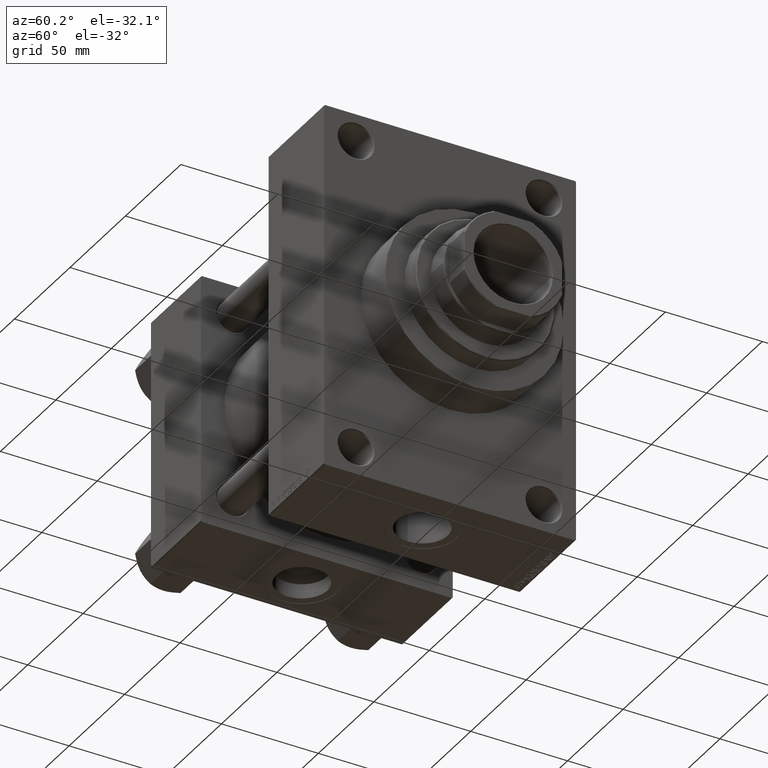
[diagram: clean part render]
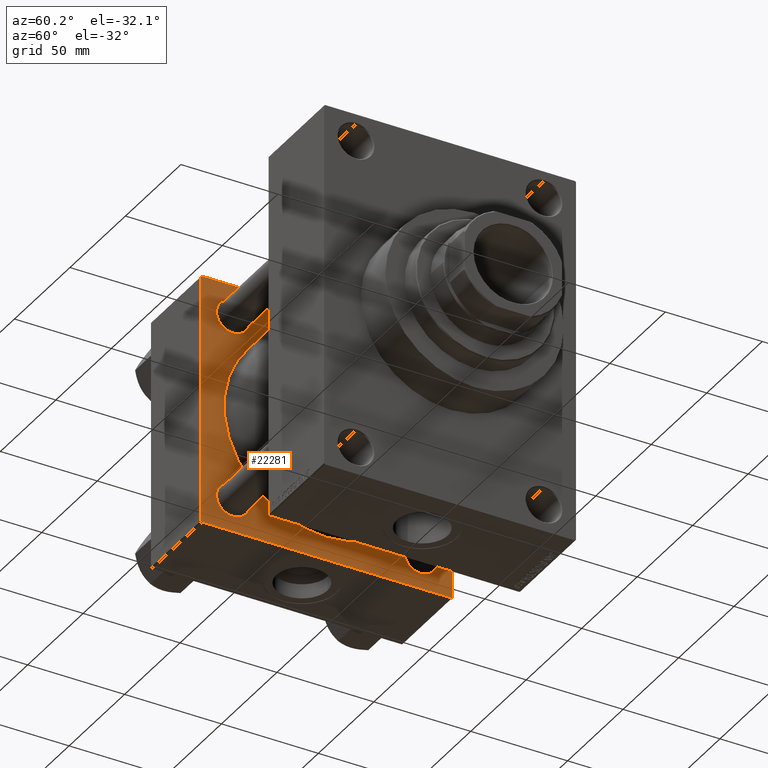
[diagram: same view with one face highlighted and labeled with its STEP entity id]
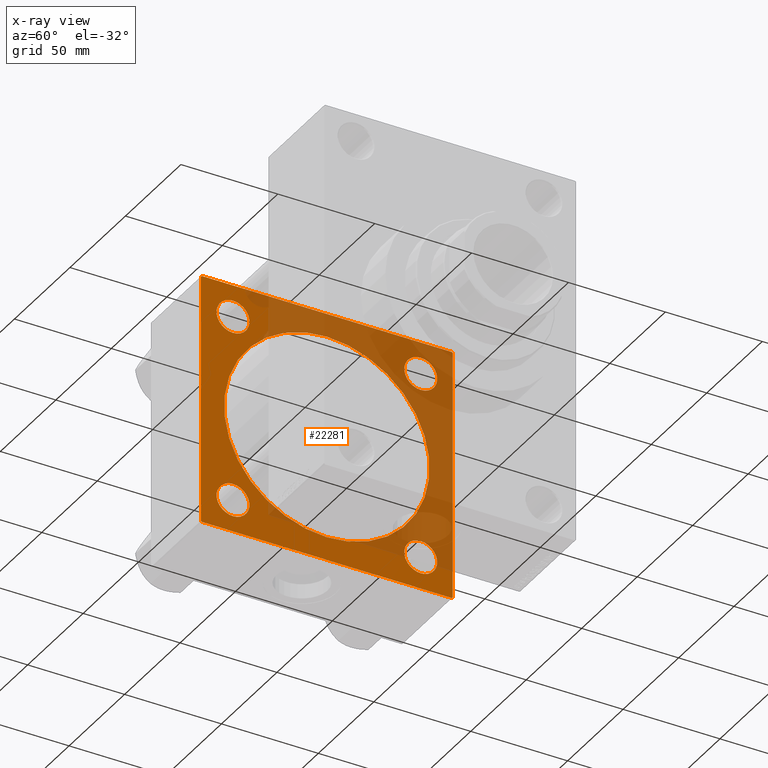
[diagram: x-ray of the same camera — body ghosted, the highlighted face saturated]
A machine part, auxiliary view. The second image highlights one B-rep face of the part: STEP entity #22281.
The next image is the same camera in x-ray: the body ghosted, the highlighted face saturated — about 47% of this face is hidden behind the body in this view.
In plain terms, the highlighted planar face has unit normal (-1, 0, 0).
Its self-contained STEP definition (entity closure, byte-faithful):
#339 = CARTESIAN_POINT ( 'NONE',  ( 45.00000000000000000, 65.00000000000000000, -64.49999999999995737 ) ) ;
#786 = VERTEX_POINT ( 'NONE', #28032 ) ;
#851 = DIRECTION ( 'NONE',  ( -1.000000000000000000, 0.000000000000000000, -0.000000000000000000 ) ) ;
#1328 = DIRECTION ( 'NONE',  ( 0.000000000000000000, 0.000000000000000000, 1.000000000000000000 ) ) ;
#1804 = CARTESIAN_POINT ( 'NONE',  ( 45.00000000000000000, -48.44999999999999574, 39.94999999999993889 ) ) ;
#1979 = CARTESIAN_POINT ( 'NONE',  ( 45.00000000000000000, -65.00000000000000000, 64.50000000000000000 ) ) ;
#2134 = VERTEX_POINT ( 'NONE', #27511 ) ;
#2612 = ORIENTED_EDGE ( 'NONE', *, *, #8716, .T. ) ;
#2794 = AXIS2_PLACEMENT_3D ( 'NONE', #10667, #25414, #10426 ) ;
#3720 = DIRECTION ( 'NONE',  ( 0.000000000000000000, 0.000000000000000000, -1.000000000000000000 ) ) ;
#3920 = DIRECTION ( 'NONE',  ( 0.000000000000000000, 0.000000000000000000, 1.000000000000000000 ) ) ;
#4370 = CARTESIAN_POINT ( 'NONE',  ( 45.00000000000000000, -2.602085213965210642E-15, 53.00000000000000711 ) ) ;
#4417 = AXIS2_PLACEMENT_3D ( 'NONE', #19728, #8383, #5459 ) ;
#4993 = AXIS2_PLACEMENT_3D ( 'NONE', #12205, #27650, #1328 ) ;
#5459 = DIRECTION ( 'NONE',  ( 0.000000000000000000, 0.000000000000000000, 1.000000000000000000 ) ) ;
#6209 = LINE ( 'NONE', #28189, #45884 ) ;
#6298 = CARTESIAN_POINT ( 'NONE',  ( 45.00000000000000000, 65.00000000000000000, -64.49999999999995737 ) ) ;
#6431 = CARTESIAN_POINT ( 'NONE',  ( 45.00000000000000000, 48.45000000000000995, -48.45000000000001705 ) ) ;
#6482 = DIRECTION ( 'NONE',  ( -1.000000000000000000, 0.000000000000000000, -0.000000000000000000 ) ) ;
#6634 = EDGE_CURVE ( 'NONE', #37706, #28269, #46336, .T. ) ;
#7171 = EDGE_CURVE ( 'NONE', #24121, #25986, #8784, .T. ) ;
#7176 = EDGE_CURVE ( 'NONE', #25986, #24121, #27315, .T. ) ;
#7689 = FACE_OUTER_BOUND ( 'NONE', #46191, .T. ) ;
#8264 = EDGE_LOOP ( 'NONE', ( #20969, #46589 ) ) ;
#8282 = EDGE_CURVE ( 'NONE', #14763, #36524, #18891, .T. ) ;
#8383 = DIRECTION ( 'NONE',  ( 1.000000000000000000, -0.000000000000000000, 0.000000000000000000 ) ) ;
#8449 = CARTESIAN_POINT ( 'NONE',  ( 45.00000000000000000, 3.888542821515760888E-15, -53.00000000000000711 ) ) ;
#8716 = EDGE_CURVE ( 'NONE', #19162, #37706, #6209, .T. ) ;
#8784 = CIRCLE ( 'NONE', #14949, 8.500000000000090594 ) ;
#9022 = VECTOR ( 'NONE', #27062, 1000.000000000000000 ) ;
#9175 = LINE ( 'NONE', #13046, #19181 ) ;
#9397 = LINE ( 'NONE', #30670, #9022 ) ;
#10236 = ORIENTED_EDGE ( 'NONE', *, *, #34978, .F. ) ;
#10426 = DIRECTION ( 'NONE',  ( 0.000000000000000000, 0.000000000000000000, 1.000000000000000000 ) ) ;
#10541 = DIRECTION ( 'NONE',  ( -0.000000000000000000, -0.7071067811865672237, -0.7071067811865279218 ) ) ;
#10667 = CARTESIAN_POINT ( 'NONE',  ( 45.00000000000000000, -2.602085213965210642E-15, 0.000000000000000000 ) ) ;
#11197 = LINE ( 'NONE', #14816, #22144 ) ;
#11282 = AXIS2_PLACEMENT_3D ( 'NONE', #13798, #39864, #43017 ) ;
#12205 = CARTESIAN_POINT ( 'NONE',  ( 45.00000000000000000, 48.45000000000000995, 48.45000000000001705 ) ) ;
#12360 = DIRECTION ( 'NONE',  ( 0.000000000000000000, 0.000000000000000000, 1.000000000000000000 ) ) ;
#12673 = CARTESIAN_POINT ( 'NONE',  ( 45.00000000000000000, 48.45000000000000995, 48.45000000000001705 ) ) ;
#12809 = EDGE_CURVE ( 'NONE', #28269, #28580, #9397, .T. ) ;
#12862 = DIRECTION ( 'NONE',  ( 0.000000000000000000, 0.000000000000000000, 1.000000000000000000 ) ) ;
#12907 = EDGE_CURVE ( 'NONE', #36321, #41749, #37542, .T. ) ;
#13046 = CARTESIAN_POINT ( 'NONE',  ( 45.00000000000000000, 65.00000000000000000, -64.99999999999998579 ) ) ;
#13775 = CIRCLE ( 'NONE', #36899, 8.500000000000090594 ) ;
#13798 = CARTESIAN_POINT ( 'NONE',  ( 45.00000000000000000, -48.44999999999999574, -48.45000000000003126 ) ) ;
#14463 = PLANE ( 'NONE',  #47295 ) ;
#14468 = ORIENTED_EDGE ( 'NONE', *, *, #27652, .T. ) ;
#14615 = CARTESIAN_POINT ( 'NONE',  ( 45.00000000000000000, 65.00000000000000000, 64.49999999999998579 ) ) ;
#14763 = VERTEX_POINT ( 'NONE', #23031 ) ;
#14816 = CARTESIAN_POINT ( 'NONE',  ( 45.00000000000000000, 65.00000000000000000, 65.00000000000001421 ) ) ;
#14949 = AXIS2_PLACEMENT_3D ( 'NONE', #12673, #851, #45747 ) ;
#15147 = EDGE_CURVE ( 'NONE', #35145, #2134, #42675, .T. ) ;
#16465 = EDGE_CURVE ( 'NONE', #35145, #25024, #11197, .T. ) ;
#16831 = DIRECTION ( 'NONE',  ( 0.000000000000000000, -0.7071067811865474617, 0.7071067811865474617 ) ) ;
#16885 = DIRECTION ( 'NONE',  ( 0.000000000000000000, 0.000000000000000000, -1.000000000000000000 ) ) ;
#17074 = DIRECTION ( 'NONE',  ( 0.000000000000000000, -1.000000000000000000, -1.067522139062650425E-16 ) ) ;
#17318 = AXIS2_PLACEMENT_3D ( 'NONE', #6431, #34716, #45813 ) ;
#17605 = DIRECTION ( 'NONE',  ( 0.000000000000000000, 0.000000000000000000, 1.000000000000000000 ) ) ;
#17627 = EDGE_LOOP ( 'NONE', ( #41335, #10236 ) ) ;
#17763 = EDGE_CURVE ( 'NONE', #786, #29346, #13775, .T. ) ;
#17963 = DIRECTION ( 'NONE',  ( -1.000000000000000000, 0.000000000000000000, -0.000000000000000000 ) ) ;
#18274 = AXIS2_PLACEMENT_3D ( 'NONE', #25091, #6482, #17605 ) ;
#18434 = ORIENTED_EDGE ( 'NONE', *, *, #16465, .F. ) ;
#18818 = ORIENTED_EDGE ( 'NONE', *, *, #7176, .T. ) ;
#18891 = CIRCLE ( 'NONE', #25859, 8.500000000000090594 ) ;
#18950 = ORIENTED_EDGE ( 'NONE', *, *, #15147, .T. ) ;
#19162 = VERTEX_POINT ( 'NONE', #29410 ) ;
#19181 = VECTOR ( 'NONE', #27299, 1000.000000000000000 ) ;
#19728 = CARTESIAN_POINT ( 'NONE',  ( 45.00000000000000000, -2.602085213965210642E-15, 0.000000000000000000 ) ) ;
#20969 = ORIENTED_EDGE ( 'NONE', *, *, #12907, .T. ) ;
#21497 = DIRECTION ( 'NONE',  ( -0.000000000000000000, 0.000000000000000000, 1.000000000000000000 ) ) ;
#21922 = VERTEX_POINT ( 'NONE', #4370 ) ;
#22144 = VECTOR ( 'NONE', #3720, 1000.000000000000000 ) ;
#22203 = FACE_BOUND ( 'NONE', #32378, .T. ) ;
#22281 = ADVANCED_FACE ( 'NONE', ( #29426, #40788, #22203, #47541, #33286, #7689 ), #14463, .F. ) ;
#22294 = CARTESIAN_POINT ( 'NONE',  ( 45.00000000000000000, -48.44999999999999574, 48.45000000000003126 ) ) ;
#22438 = CARTESIAN_POINT ( 'NONE',  ( 45.00000000000000000, 0.000000000000000000, 0.000000000000000000 ) ) ;
#22850 = CIRCLE ( 'NONE', #32059, 8.500000000000090594 ) ;
#22952 = CIRCLE ( 'NONE', #4417, 53.00000000000000711 ) ;
#23031 = CARTESIAN_POINT ( 'NONE',  ( 45.00000000000000000, -48.44999999999999574, -39.94999999999993889 ) ) ;
#24121 = VERTEX_POINT ( 'NONE', #26377 ) ;
#25024 = VERTEX_POINT ( 'NONE', #6298 ) ;
#25049 = CIRCLE ( 'NONE', #17318, 8.500000000000090594 ) ;
#25062 = ORIENTED_EDGE ( 'NONE', *, *, #12809, .T. ) ;
#25091 = CARTESIAN_POINT ( 'NONE',  ( 45.00000000000000000, 48.45000000000000995, -48.45000000000001705 ) ) ;
#25414 = DIRECTION ( 'NONE',  ( 1.000000000000000000, -0.000000000000000000, 0.000000000000000000 ) ) ;
#25714 = DIRECTION ( 'NONE',  ( -0.000000000000000000, 0.7071067811865474617, 0.7071067811865474617 ) ) ;
#25735 = EDGE_CURVE ( 'NONE', #41749, #36321, #25049, .T. ) ;
#25859 = AXIS2_PLACEMENT_3D ( 'NONE', #37033, #17963, #12862 ) ;
#25986 = VERTEX_POINT ( 'NONE', #35124 ) ;
#26377 = CARTESIAN_POINT ( 'NONE',  ( 45.00000000000000000, 48.45000000000000995, 39.94999999999992468 ) ) ;
#27062 = DIRECTION ( 'NONE',  ( 0.000000000000000000, 0.7071067811865279218, -0.7071067811865671127 ) ) ;
#27065 = ORIENTED_EDGE ( 'NONE', *, *, #33238, .T. ) ;
#27299 = DIRECTION ( 'NONE',  ( 0.000000000000000000, -1.000000000000000000, -1.067522139062650425E-16 ) ) ;
#27315 = CIRCLE ( 'NONE', #4993, 8.500000000000090594 ) ;
#27511 = CARTESIAN_POINT ( 'NONE',  ( 45.00000000000000000, 64.49999999999997158, 65.00000000000001421 ) ) ;
#27650 = DIRECTION ( 'NONE',  ( -1.000000000000000000, 0.000000000000000000, -0.000000000000000000 ) ) ;
#27652 = EDGE_CURVE ( 'NONE', #35418, #25024, #43826, .T. ) ;
#27869 = CARTESIAN_POINT ( 'NONE',  ( 45.00000000000000000, 48.45000000000000995, -56.95000000000010232 ) ) ;
#27988 = CARTESIAN_POINT ( 'NONE',  ( 45.00000000000000000, -65.00000000000000000, 65.00000000000000000 ) ) ;
#28032 = CARTESIAN_POINT ( 'NONE',  ( 45.00000000000000000, -48.44999999999999574, 56.95000000000011653 ) ) ;
#28189 = CARTESIAN_POINT ( 'NONE',  ( 45.00000000000000000, -65.00000000000000000, 64.50000000000000000 ) ) ;
#28209 = VECTOR ( 'NONE', #25714, 1000.000000000000114 ) ;
#28269 = VERTEX_POINT ( 'NONE', #43149 ) ;
#28439 = VECTOR ( 'NONE', #17074, 1000.000000000000000 ) ;
#28580 = VERTEX_POINT ( 'NONE', #32452 ) ;
#29346 = VERTEX_POINT ( 'NONE', #1804 ) ;
#29410 = CARTESIAN_POINT ( 'NONE',  ( 45.00000000000000000, -64.49999999999997158, 65.00000000000000000 ) ) ;
#29426 = FACE_BOUND ( 'NONE', #29506, .T. ) ;
#29506 = EDGE_LOOP ( 'NONE', ( #27065, #35805 ) ) ;
#29929 = EDGE_CURVE ( 'NONE', #21922, #47147, #38956, .T. ) ;
#30670 = CARTESIAN_POINT ( 'NONE',  ( 45.00000000000000000, -64.49999999999994316, -65.00000000000000000 ) ) ;
#32059 = AXIS2_PLACEMENT_3D ( 'NONE', #42053, #34571, #12360 ) ;
#32378 = EDGE_LOOP ( 'NONE', ( #34535, #36829 ) ) ;
#32416 = EDGE_CURVE ( 'NONE', #29346, #786, #22850, .T. ) ;
#32452 = CARTESIAN_POINT ( 'NONE',  ( 45.00000000000000000, -64.49999999999994316, -65.00000000000000000 ) ) ;
#33238 = EDGE_CURVE ( 'NONE', #36524, #14763, #45989, .T. ) ;
#33286 = FACE_BOUND ( 'NONE', #17627, .T. ) ;
#34535 = ORIENTED_EDGE ( 'NONE', *, *, #32416, .T. ) ;
#34571 = DIRECTION ( 'NONE',  ( -1.000000000000000000, 0.000000000000000000, -0.000000000000000000 ) ) ;
#34716 = DIRECTION ( 'NONE',  ( -1.000000000000000000, 0.000000000000000000, -0.000000000000000000 ) ) ;
#34978 = EDGE_CURVE ( 'NONE', #47147, #21922, #22952, .T. ) ;
#35124 = CARTESIAN_POINT ( 'NONE',  ( 45.00000000000000000, 48.45000000000000995, 56.95000000000010232 ) ) ;
#35145 = VERTEX_POINT ( 'NONE', #14615 ) ;
#35179 = CARTESIAN_POINT ( 'NONE',  ( 45.00000000000000000, 64.49999999999997158, 65.00000000000001421 ) ) ;
#35418 = VERTEX_POINT ( 'NONE', #46676 ) ;
#35435 = LINE ( 'NONE', #47230, #28439 ) ;
#35805 = ORIENTED_EDGE ( 'NONE', *, *, #8282, .T. ) ;
#35949 = VECTOR ( 'NONE', #16831, 1000.000000000000114 ) ;
#35970 = EDGE_LOOP ( 'NONE', ( #37000, #18818 ) ) ;
#36321 = VERTEX_POINT ( 'NONE', #27869 ) ;
#36524 = VERTEX_POINT ( 'NONE', #41599 ) ;
#36829 = ORIENTED_EDGE ( 'NONE', *, *, #17763, .T. ) ;
#36899 = AXIS2_PLACEMENT_3D ( 'NONE', #22294, #37009, #3920 ) ;
#37000 = ORIENTED_EDGE ( 'NONE', *, *, #7171, .T. ) ;
#37009 = DIRECTION ( 'NONE',  ( -1.000000000000000000, 0.000000000000000000, -0.000000000000000000 ) ) ;
#37033 = CARTESIAN_POINT ( 'NONE',  ( 45.00000000000000000, -48.44999999999999574, -48.45000000000003126 ) ) ;
#37154 = DIRECTION ( 'NONE',  ( -1.000000000000000000, 0.000000000000000000, -0.000000000000000000 ) ) ;
#37542 = CIRCLE ( 'NONE', #18274, 8.500000000000090594 ) ;
#37706 = VERTEX_POINT ( 'NONE', #1979 ) ;
#37889 = EDGE_CURVE ( 'NONE', #35418, #28580, #9175, .T. ) ;
#38207 = EDGE_CURVE ( 'NONE', #2134, #19162, #35435, .T. ) ;
#38956 = CIRCLE ( 'NONE', #2794, 53.00000000000000711 ) ;
#39609 = CARTESIAN_POINT ( 'NONE',  ( 45.00000000000000000, 48.45000000000000995, -39.94999999999992468 ) ) ;
#39864 = DIRECTION ( 'NONE',  ( -1.000000000000000000, 0.000000000000000000, -0.000000000000000000 ) ) ;
#40788 = FACE_BOUND ( 'NONE', #8264, .T. ) ;
#40980 = ORIENTED_EDGE ( 'NONE', *, *, #37889, .F. ) ;
#41335 = ORIENTED_EDGE ( 'NONE', *, *, #29929, .F. ) ;
#41599 = CARTESIAN_POINT ( 'NONE',  ( 45.00000000000000000, -48.44999999999999574, -56.95000000000011653 ) ) ;
#41749 = VERTEX_POINT ( 'NONE', #39609 ) ;
#42053 = CARTESIAN_POINT ( 'NONE',  ( 45.00000000000000000, -48.44999999999999574, 48.45000000000003126 ) ) ;
#42675 = LINE ( 'NONE', #35179, #35949 ) ;
#43017 = DIRECTION ( 'NONE',  ( 0.000000000000000000, 0.000000000000000000, 1.000000000000000000 ) ) ;
#43149 = CARTESIAN_POINT ( 'NONE',  ( 45.00000000000000000, -65.00000000000000000, -64.49999999999991473 ) ) ;
#43507 = VECTOR ( 'NONE', #16885, 1000.000000000000000 ) ;
#43826 = LINE ( 'NONE', #339, #28209 ) ;
#43906 = ORIENTED_EDGE ( 'NONE', *, *, #38207, .T. ) ;
#45196 = ORIENTED_EDGE ( 'NONE', *, *, #6634, .T. ) ;
#45747 = DIRECTION ( 'NONE',  ( 0.000000000000000000, 0.000000000000000000, 1.000000000000000000 ) ) ;
#45813 = DIRECTION ( 'NONE',  ( 0.000000000000000000, 0.000000000000000000, 1.000000000000000000 ) ) ;
#45884 = VECTOR ( 'NONE', #10541, 1000.000000000000000 ) ;
#45989 = CIRCLE ( 'NONE', #11282, 8.500000000000090594 ) ;
#46191 = EDGE_LOOP ( 'NONE', ( #40980, #14468, #18434, #18950, #43906, #2612, #45196, #25062 ) ) ;
#46336 = LINE ( 'NONE', #27988, #43507 ) ;
#46589 = ORIENTED_EDGE ( 'NONE', *, *, #25735, .T. ) ;
#46676 = CARTESIAN_POINT ( 'NONE',  ( 45.00000000000000000, 64.49999999999997158, -64.99999999999998579 ) ) ;
#47147 = VERTEX_POINT ( 'NONE', #8449 ) ;
#47230 = CARTESIAN_POINT ( 'NONE',  ( 45.00000000000000000, 65.00000000000000000, 65.00000000000001421 ) ) ;
#47295 = AXIS2_PLACEMENT_3D ( 'NONE', #22438, #37154, #21497 ) ;
#47541 = FACE_BOUND ( 'NONE', #35970, .T. ) ;